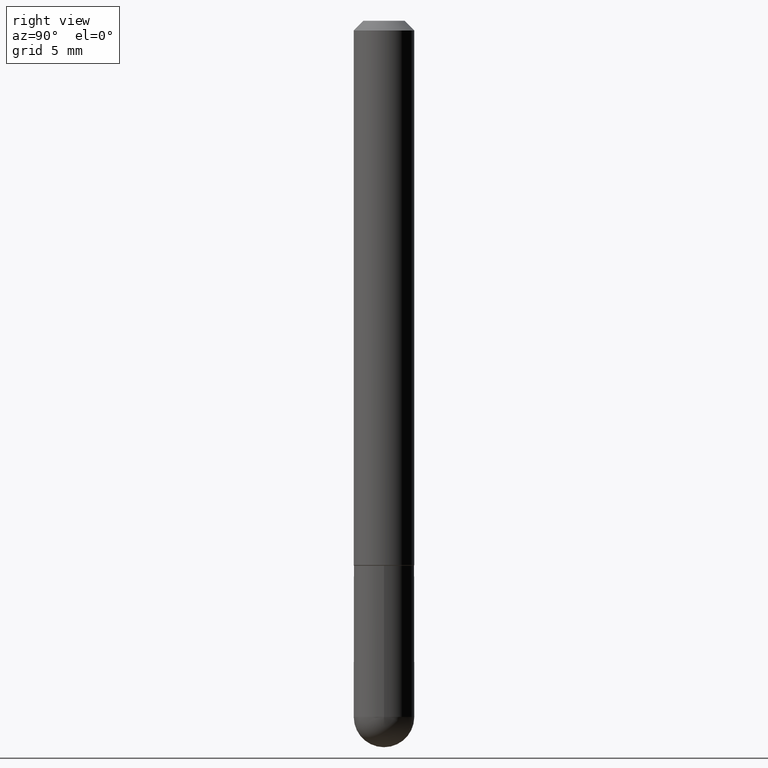
[diagram: clean part render]
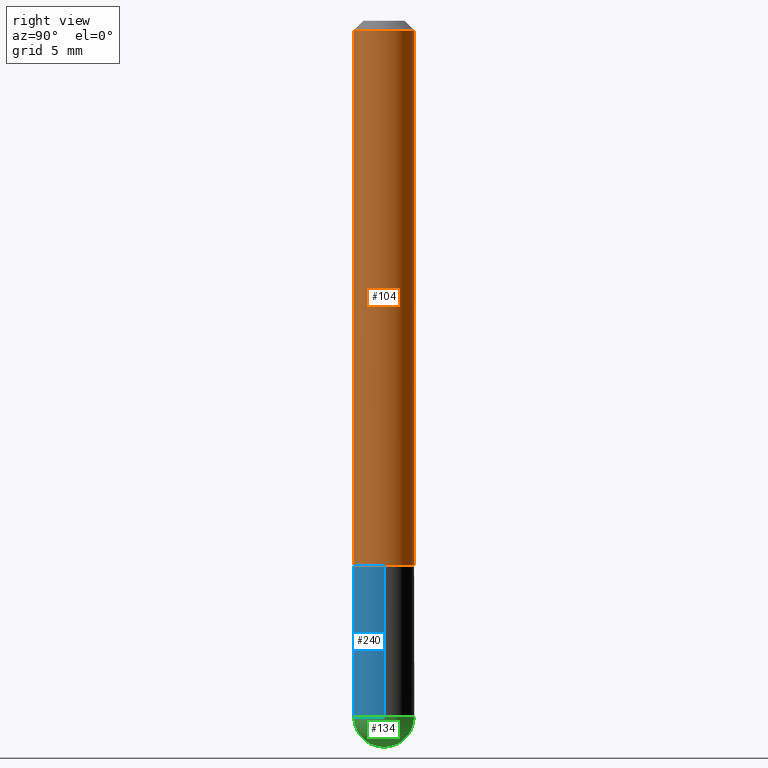
[diagram: same view with three faces highlighted in distinct colors, each labeled with its STEP entity id]
A machine part, right view with three faces highlighted in distinct colors.
Their STEP definitions:

[orange] entity #104 — the highlighted cylindrical surface (edge-blend (fillet) strip) has radius 1.5875 mm, axis along (-0, 0, 1).
#3 = ORIENTED_EDGE ( 'NONE', *, *, #263, .F. ) ;
#11 = CARTESIAN_POINT ( 'NONE',  ( -4.287811248607198352E-16, -0.06250000000000001388, -0.01999999999999985123 ) ) ;
#13 = CARTESIAN_POINT ( 'NONE',  ( 0.000000000000000000, 0.000000000000000000, 0.000000000000000000 ) ) ;
#24 = DIRECTION ( 'NONE',  ( -2.466183177392588152E-29, 3.461817180285283687E-15, 1.000000000000000000 ) ) ;
#25 = VERTEX_POINT ( 'NONE', #173 ) ;
#31 = VECTOR ( 'NONE', #326, 39.37007874015748143 ) ;
#54 = VERTEX_POINT ( 'NONE', #11 ) ;
#57 = EDGE_CURVE ( 'NONE', #25, #124, #395, .T. ) ;
#64 = ORIENTED_EDGE ( 'NONE', *, *, #57, .T. ) ;
#65 = CARTESIAN_POINT ( 'NONE',  ( 4.364351673553917187E-16, 0.06249999999999988204, -0.02000000000000028491 ) ) ;
#69 = CARTESIAN_POINT ( 'NONE',  ( 4.932366354785193785E-31, -6.923634360570589906E-17, -0.02000000000000006981 ) ) ;
#71 = EDGE_LOOP ( 'NONE', ( #287, #64, #3, #207 ) ) ;
#83 = AXIS2_PLACEMENT_3D ( 'NONE', #69, #392, #201 ) ;
#104 = ADVANCED_FACE ( 'NONE', ( #112 ), #116, .T. ) ;
#112 = FACE_OUTER_BOUND ( 'NONE', #71, .T. ) ;
#116 = CYLINDRICAL_SURFACE ( 'NONE', #269, 0.06250000000000000000 ) ;
#124 = VERTEX_POINT ( 'NONE', #65 ) ;
#127 = CARTESIAN_POINT ( 'NONE',  ( 2.771989891389269485E-29, -3.891082510640658844E-15, -1.124000000000000110 ) ) ;
#142 = LINE ( 'NONE', #309, #398 ) ;
#158 = AXIS2_PLACEMENT_3D ( 'NONE', #127, #244, #283 ) ;
#173 = CARTESIAN_POINT ( 'NONE',  ( 4.440892098500769143E-16, 0.06249999999999615585, -1.124000000000000332 ) ) ;
#181 = CIRCLE ( 'NONE', #158, 0.06250000000000005551 ) ;
#201 = DIRECTION ( 'NONE',  ( -6.982962677686265922E-15, -1.000000000000000000, 3.483106191921938315E-15 ) ) ;
#205 = DIRECTION ( 'NONE',  ( -6.982962677686265922E-15, -1.000000000000000000, 3.461817180285283292E-15 ) ) ;
#207 = ORIENTED_EDGE ( 'NONE', *, *, #321, .F. ) ;
#233 = CARTESIAN_POINT ( 'NONE',  ( 4.440892098500625669E-16, 0.06250000000000000000, -2.163635737678302058E-16 ) ) ;
#244 = DIRECTION ( 'NONE',  ( -2.466183177392588152E-29, 3.461817180285283687E-15, 1.000000000000000000 ) ) ;
#263 = EDGE_CURVE ( 'NONE', #54, #124, #347, .T. ) ;
#269 = AXIS2_PLACEMENT_3D ( 'NONE', #13, #388, #205 ) ;
#283 = DIRECTION ( 'NONE',  ( -6.982962677686265133E-15, -1.000000000000000000, 4.370956789862817205E-15 ) ) ;
#287 = ORIENTED_EDGE ( 'NONE', *, *, #358, .T. ) ;
#309 = CARTESIAN_POINT ( 'NONE',  ( -4.364351673553916201E-16, -0.06250000000000000000, 2.163635737678302058E-16 ) ) ;
#321 = EDGE_CURVE ( 'NONE', #376, #54, #142, .T. ) ;
#326 = DIRECTION ( 'NONE',  ( -2.466183177392588152E-29, 3.461817180285283687E-15, 1.000000000000000000 ) ) ;
#339 = CARTESIAN_POINT ( 'NONE',  ( -4.364351673553642565E-16, -0.06250000000000394129, -1.123999999999999888 ) ) ;
#347 = CIRCLE ( 'NONE', #83, 0.06249999999999995143 ) ;
#358 = EDGE_CURVE ( 'NONE', #376, #25, #181, .T. ) ;
#376 = VERTEX_POINT ( 'NONE', #339 ) ;
#388 = DIRECTION ( 'NONE',  ( -2.466183177392588152E-29, 3.461817180285283687E-15, 1.000000000000000000 ) ) ;
#392 = DIRECTION ( 'NONE',  ( -2.466183177392588152E-29, 3.461817180285283687E-15, 1.000000000000000000 ) ) ;
#395 = LINE ( 'NONE', #233, #31 ) ;
#398 = VECTOR ( 'NONE', #24, 39.37007874015748143 ) ;

[blue] entity #240 — the highlighted cylindrical surface (edge-blend (fillet) strip) has radius 1.5875 mm, axis along (-0, 0, 1).
#1 = DIRECTION ( 'NONE',  ( -2.445468806185136597E-29, 3.491481338843145583E-15, 1.000000000000000000 ) ) ;
#4 = DIRECTION ( 'NONE',  ( 1.000000000000000000, -6.982962677686268288E-15, 0.000000000000000000 ) ) ;
#8 = EDGE_CURVE ( 'NONE', #160, #316, #391, .T. ) ;
#19 = AXIS2_PLACEMENT_3D ( 'NONE', #23, #153, #274 ) ;
#23 = CARTESIAN_POINT ( 'NONE',  ( 2.751152406958278111E-29, -3.927916506198538435E-15, -1.124999999999999778 ) ) ;
#33 = CYLINDRICAL_SURFACE ( 'NONE', #97, 0.06249999999999997918 ) ;
#35 = CARTESIAN_POINT ( 'NONE',  ( 3.515361408891134418E-29, -5.019004424587023131E-15, -1.437500000000000222 ) ) ;
#38 = ORIENTED_EDGE ( 'NONE', *, *, #371, .F. ) ;
#55 = AXIS2_PLACEMENT_3D ( 'NONE', #35, #279, #4 ) ;
#84 = CIRCLE ( 'NONE', #378, 0.06249999999999995143 ) ;
#85 = CARTESIAN_POINT ( 'NONE',  ( -0.06250000000000001388, -4.029371255542718167E-15, -1.124999999999999778 ) ) ;
#89 = DIRECTION ( 'NONE',  ( -2.445468806185136877E-29, 3.491481338843145188E-15, 1.000000000000000000 ) ) ;
#90 = ORIENTED_EDGE ( 'NONE', *, *, #119, .F. ) ;
#97 = AXIS2_PLACEMENT_3D ( 'NONE', #165, #1, #354 ) ;
#119 = EDGE_CURVE ( 'NONE', #167, #316, #303, .T. ) ;
#135 = CARTESIAN_POINT ( 'NONE',  ( -4.440892098500294840E-16, -0.06250000000000532907, -1.437500000000000000 ) ) ;
#143 = ORIENTED_EDGE ( 'NONE', *, *, #148, .T. ) ;
#148 = EDGE_CURVE ( 'NONE', #330, #160, #84, .T. ) ;
#153 = DIRECTION ( 'NONE',  ( -2.445468806185136597E-29, 3.491481338843145583E-15, 1.000000000000000000 ) ) ;
#160 = VERTEX_POINT ( 'NONE', #334 ) ;
#165 = CARTESIAN_POINT ( 'NONE',  ( 0.000000000000000000, 0.000000000000000000, 0.000000000000000000 ) ) ;
#167 = VERTEX_POINT ( 'NONE', #85 ) ;
#182 = EDGE_CURVE ( 'NONE', #194, #330, #314, .T. ) ;
#191 = DIRECTION ( 'NONE',  ( 1.000000000000000000, -6.982962677686268288E-15, 0.000000000000000000 ) ) ;
#192 = CARTESIAN_POINT ( 'NONE',  ( -0.06249999999999997918, 4.440892098500624683E-16, -3.074334431409315413E-30 ) ) ;
#194 = VERTEX_POINT ( 'NONE', #308 ) ;
#195 = DIRECTION ( 'NONE',  ( -2.445468806185136877E-29, 3.491481338843145188E-15, 1.000000000000000000 ) ) ;
#216 = FACE_OUTER_BOUND ( 'NONE', #256, .T. ) ;
#217 = LINE ( 'NONE', #192, #231 ) ;
#220 = CARTESIAN_POINT ( 'NONE',  ( 3.515361408891134418E-29, -5.019004424587023131E-15, -1.437500000000000222 ) ) ;
#231 = VECTOR ( 'NONE', #89, 39.37007874015748143 ) ;
#240 = ADVANCED_FACE ( 'NONE', ( #216 ), #33, .T. ) ;
#256 = EDGE_LOOP ( 'NONE', ( #38, #380, #143, #368, #90 ) ) ;
#274 = DIRECTION ( 'NONE',  ( 1.000000000000000000, -6.982962677686269077E-15, 0.000000000000000000 ) ) ;
#279 = DIRECTION ( 'NONE',  ( -2.445468806185136597E-29, 3.491481338843145583E-15, 1.000000000000000000 ) ) ;
#303 = CIRCLE ( 'NONE', #19, 0.06250000000000001388 ) ;
#308 = CARTESIAN_POINT ( 'NONE',  ( -0.06249999999999995143, -4.029371255542718167E-15, -1.437500000000000222 ) ) ;
#310 = DIRECTION ( 'NONE',  ( -2.445468806185136597E-29, 3.491481338843145583E-15, 1.000000000000000000 ) ) ;
#314 = CIRCLE ( 'NONE', #55, 0.06249999999999995143 ) ;
#316 = VERTEX_POINT ( 'NONE', #344 ) ;
#325 = CARTESIAN_POINT ( 'NONE',  ( 0.06249999999999997918, -4.364351673553915708E-16, 3.047610484872459170E-30 ) ) ;
#330 = VERTEX_POINT ( 'NONE', #135 ) ;
#334 = CARTESIAN_POINT ( 'NONE',  ( 0.06249999999999995143, -4.909895632748172453E-15, -1.437500000000000222 ) ) ;
#344 = CARTESIAN_POINT ( 'NONE',  ( 0.06250000000000001388, -4.364351673553930105E-15, -1.124999999999999778 ) ) ;
#354 = DIRECTION ( 'NONE',  ( 1.000000000000000000, -6.982962677686267499E-15, 4.876176775795936353E-29 ) ) ;
#368 = ORIENTED_EDGE ( 'NONE', *, *, #8, .T. ) ;
#371 = EDGE_CURVE ( 'NONE', #194, #167, #217, .T. ) ;
#378 = AXIS2_PLACEMENT_3D ( 'NONE', #220, #310, #191 ) ;
#380 = ORIENTED_EDGE ( 'NONE', *, *, #182, .T. ) ;
#391 = LINE ( 'NONE', #325, #394 ) ;
#394 = VECTOR ( 'NONE', #195, 39.37007874015748143 ) ;

[green] entity #134 — the highlighted spherical surface has radius 1.5875 mm.
#18 = EDGE_CURVE ( 'NONE', #67, #330, #129, .T. ) ;
#37 = VERTEX_POINT ( 'NONE', #264 ) ;
#39 = DIRECTION ( 'NONE',  ( -7.105427357601001859E-15, -1.000000000000000000, 0.000000000000000000 ) ) ;
#43 = CIRCLE ( 'NONE', #171, 0.06249999999999995143 ) ;
#62 = SPHERICAL_SURFACE ( 'NONE', #253, 0.06250000000000018041 ) ;
#67 = VERTEX_POINT ( 'NONE', #359 ) ;
#68 = EDGE_CURVE ( 'NONE', #160, #37, #43, .T. ) ;
#77 = AXIS2_PLACEMENT_3D ( 'NONE', #188, #260, #268 ) ;
#80 = CARTESIAN_POINT ( 'NONE',  ( 3.515361408891134418E-29, -5.019004424587023131E-15, -1.437500000000000222 ) ) ;
#84 = CIRCLE ( 'NONE', #378, 0.06249999999999995143 ) ;
#94 = EDGE_CURVE ( 'NONE', #67, #37, #204, .T. ) ;
#95 = FACE_OUTER_BOUND ( 'NONE', #336, .T. ) ;
#115 = ORIENTED_EDGE ( 'NONE', *, *, #148, .F. ) ;
#129 = CIRCLE ( 'NONE', #278, 0.06250000000000018041 ) ;
#134 = ADVANCED_FACE ( 'NONE', ( #95 ), #62, .T. ) ;
#135 = CARTESIAN_POINT ( 'NONE',  ( -4.440892098500294840E-16, -0.06250000000000532907, -1.437500000000000000 ) ) ;
#139 = ORIENTED_EDGE ( 'NONE', *, *, #94, .T. ) ;
#148 = EDGE_CURVE ( 'NONE', #330, #160, #84, .T. ) ;
#160 = VERTEX_POINT ( 'NONE', #334 ) ;
#171 = AXIS2_PLACEMENT_3D ( 'NONE', #80, #396, #200 ) ;
#176 = CARTESIAN_POINT ( 'NONE',  ( 3.184241630977247611E-29, -5.493186792727071849E-15, -1.437500000000000000 ) ) ;
#188 = CARTESIAN_POINT ( 'NONE',  ( 3.184241630977247611E-29, -5.493186792727071849E-15, -1.437500000000000000 ) ) ;
#191 = DIRECTION ( 'NONE',  ( 1.000000000000000000, -6.982962677686268288E-15, 0.000000000000000000 ) ) ;
#200 = DIRECTION ( 'NONE',  ( 1.000000000000000000, -6.982962677686268288E-15, 0.000000000000000000 ) ) ;
#204 = CIRCLE ( 'NONE', #77, 0.06250000000000018041 ) ;
#220 = CARTESIAN_POINT ( 'NONE',  ( 3.515361408891134418E-29, -5.019004424587023131E-15, -1.437500000000000222 ) ) ;
#253 = AXIS2_PLACEMENT_3D ( 'NONE', #338, #375, #272 ) ;
#260 = DIRECTION ( 'NONE',  ( 1.000000000000000000, -6.982962677686265922E-15, 4.883557194083112340E-29 ) ) ;
#264 = CARTESIAN_POINT ( 'NONE',  ( 4.364351673554256397E-16, 0.06249999999999480971, -1.437500000000000444 ) ) ;
#268 = DIRECTION ( 'NONE',  ( 6.982962677686266711E-15, 1.000000000000000000, 0.000000000000000000 ) ) ;
#272 = DIRECTION ( 'NONE',  ( 6.982962677686265922E-15, 1.000000000000000000, -4.370956789862807739E-15 ) ) ;
#278 = AXIS2_PLACEMENT_3D ( 'NONE', #176, #322, #39 ) ;
#302 = ORIENTED_EDGE ( 'NONE', *, *, #68, .F. ) ;
#310 = DIRECTION ( 'NONE',  ( -2.445468806185136597E-29, 3.491481338843145583E-15, 1.000000000000000000 ) ) ;
#319 = ORIENTED_EDGE ( 'NONE', *, *, #18, .F. ) ;
#322 = DIRECTION ( 'NONE',  ( -1.000000000000000000, 7.105427357601001070E-15, -4.926315508542082329E-29 ) ) ;
#330 = VERTEX_POINT ( 'NONE', #135 ) ;
#334 = CARTESIAN_POINT ( 'NONE',  ( 0.06249999999999995143, -4.909895632748172453E-15, -1.437500000000000222 ) ) ;
#336 = EDGE_LOOP ( 'NONE', ( #319, #139, #302, #115 ) ) ;
#338 = CARTESIAN_POINT ( 'NONE',  ( 3.184241630977247611E-29, -5.493186792727071849E-15, -1.437500000000000000 ) ) ;
#359 = CARTESIAN_POINT ( 'NONE',  ( 3.339755826017505008E-29, -5.707577355157432999E-15, -1.500000000000000222 ) ) ;
#375 = DIRECTION ( 'NONE',  ( -1.000000000000000000, 6.982962677686265922E-15, -4.883557194083112340E-29 ) ) ;
#378 = AXIS2_PLACEMENT_3D ( 'NONE', #220, #310, #191 ) ;
#396 = DIRECTION ( 'NONE',  ( -2.445468806185136597E-29, 3.491481338843145583E-15, 1.000000000000000000 ) ) ;